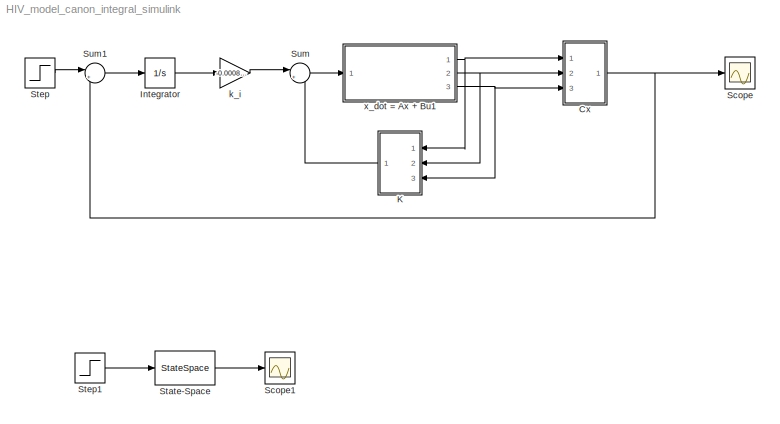
MODEL HIV_model_canon_integral_simulink
KIND model
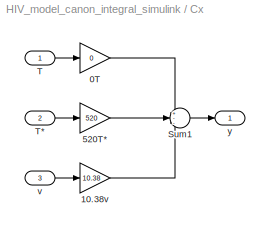
BLOCK [SubSystem] Cx
  FunctionWithSeparateData = off
  MaskHideContents = off
  MinAlgLoopOccurrences = off
  Opaque = off
  Ports = [3, 1]
  PropExecContextOutsideSubsystem = off
  RTWSystemCode = Auto
  RequestExecContextInheritance = off
  SID = 22
BLOCK [Gain] Cx/0T
  Gain = 0
  OutDataTypeMode = Inherit via internal rule
  OutDataTypeStr = Inherit: Inherit via internal rule
  ParamDataTypeStr = Inherit: Inherit via internal rule
  ParameterDataTypeMode = Inherit via internal rule
  SID = 18
  SaturateOnIntegerOverflow = off
BLOCK [Gain] Cx/10.38v
  Gain = 10.38
  OutDataTypeMode = Inherit via internal rule
  OutDataTypeStr = Inherit: Inherit via internal rule
  ParamDataTypeStr = Inherit: Inherit via internal rule
  ParameterDataTypeMode = Inherit via internal rule
  SID = 20
  SaturateOnIntegerOverflow = off
BLOCK [Gain] Cx/520T*
  Gain = 520
  OutDataTypeMode = Inherit via internal rule
  OutDataTypeStr = Inherit: Inherit via internal rule
  ParamDataTypeStr = Inherit: Inherit via internal rule
  ParameterDataTypeMode = Inherit via internal rule
  SID = 19
  SaturateOnIntegerOverflow = off
BLOCK [Sum] Cx/Sum1
  IconShape = round
  InputSameDT = off
  Inputs = +--
  OutDataTypeMode = Inherit via internal rule
  OutDataTypeStr = Inherit: Inherit via internal rule
  Ports = [3, 1]
  SID = 21
  SaturateOnIntegerOverflow = off
BLOCK [Inport] Cx/T
  IconDisplay = Port number
  SID = 23
BLOCK [Inport] Cx/T*
  IconDisplay = Port number
  Port = 2
  SID = 24
BLOCK [Inport] Cx/v
  IconDisplay = Port number
  Port = 3
  SID = 26
BLOCK [Outport] Cx/y
  IconDisplay = Port number
  SID = 25
BLOCK [Integrator] Integrator
  Ports = [1, 1]
  SID = 44
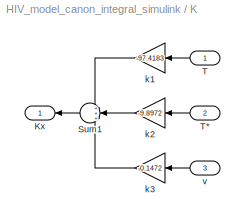
BLOCK [SubSystem] K
  FunctionWithSeparateData = off
  MaskHideContents = off
  MinAlgLoopOccurrences = off
  Opaque = off
  Ports = [3, 1]
  PropExecContextOutsideSubsystem = off
  RTWSystemCode = Auto
  RequestExecContextInheritance = off
  SID = 32
BLOCK [Outport] K/Kx
  IconDisplay = Port number
  SID = 34
BLOCK [Sum] K/Sum1
  IconShape = round
  InputSameDT = off
  Inputs = +++
  OutDataTypeMode = Inherit via internal rule
  OutDataTypeStr = Inherit: Inherit via internal rule
  Ports = [3, 1]
  SID = 30
  SaturateOnIntegerOverflow = off
BLOCK [Inport] K/T
  IconDisplay = Port number
  SID = 33
BLOCK [Inport] K/T*
  IconDisplay = Port number
  Port = 2
  SID = 35
BLOCK [Gain] K/k1
  Gain = -97.4183
  OutDataTypeMode = Inherit via internal rule
  OutDataTypeStr = Inherit: Inherit via internal rule
  ParamDataTypeStr = Inherit: Inherit via internal rule
  ParameterDataTypeMode = Inherit via internal rule
  SID = 27
  SaturateOnIntegerOverflow = off
BLOCK [Gain] K/k2
  Gain = -9.8972
  OutDataTypeMode = Inherit via internal rule
  OutDataTypeStr = Inherit: Inherit via internal rule
  ParamDataTypeStr = Inherit: Inherit via internal rule
  ParameterDataTypeMode = Inherit via internal rule
  SID = 28
  SaturateOnIntegerOverflow = off
BLOCK [Gain] K/k3
  Gain = -0.1472
  OutDataTypeMode = Inherit via internal rule
  OutDataTypeStr = Inherit: Inherit via internal rule
  ParamDataTypeStr = Inherit: Inherit via internal rule
  ParameterDataTypeMode = Inherit via internal rule
  SID = 29
  SaturateOnIntegerOverflow = off
BLOCK [Inport] K/v
  IconDisplay = Port number
  Port = 3
  SID = 36
BLOCK [Scope] Scope
  DataFormat = Array
  Floating = off
  LimitDataPoints = off
  NumInputPorts = 1
  Ports = [1]
  SID = 37
  SampleTime = 0
  SaveName = ScopeData_Integral
  SaveToWorkspace = on
  TimeRange = 160
  YMax = 1.4
  YMin = 0
  ZoomMode = xonly
BLOCK [Scope] Scope1
  DataFormat = Array
  Floating = off
  LimitDataPoints = off
  NumInputPorts = 1
  Ports = [1]
  SID = 52
  SampleTime = 0
  SaveName = ScopeData_Integral1
  SaveToWorkspace = on
  TimeRange = 160
  YMax = 1.4
  YMin = 0
  ZoomMode = xonly
BLOCK [StateSpace] State-Space
  A = sys_big.a
  B = sys_big.b
  C = sys_big.c
  D = sys_big.d
  SID = 51
BLOCK [Step] Step
  SID = 8
  SampleTime = 0
  Time = 0
BLOCK [Step] Step1
  SID = 50
  SampleTime = 0
  Time = 0
BLOCK [Sum] Sum
  IconShape = round
  InputSameDT = off
  Inputs = |++
  OutDataTypeMode = Inherit via internal rule
  OutDataTypeStr = Inherit: Inherit via internal rule
  Ports = [2, 1]
  SID = 17
  SaturateOnIntegerOverflow = off
BLOCK [Sum] Sum1
  IconShape = round
  InputSameDT = off
  Inputs = |+-
  OutDataTypeMode = Inherit via internal rule
  OutDataTypeStr = Inherit: Inherit via internal rule
  Ports = [2, 1]
  SID = 42
  SaturateOnIntegerOverflow = off
BLOCK [Gain] k_i
  Gain = -0.00088499
  OutDataTypeMode = Inherit via internal rule
  OutDataTypeStr = Inherit: Inherit via internal rule
  ParamDataTypeStr = Inherit: Inherit via internal rule
  ParameterDataTypeMode = Inherit via internal rule
  SID = 41
  SaturateOnIntegerOverflow = off
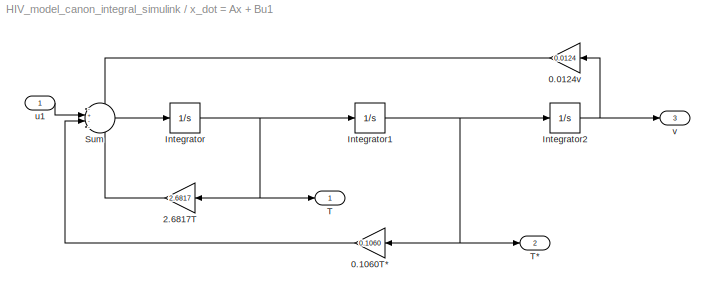
BLOCK [SubSystem] x_dot = Ax + Bu1
  FunctionWithSeparateData = off
  MaskHideContents = off
  MinAlgLoopOccurrences = off
  Opaque = off
  Ports = [1, 3]
  PropExecContextOutsideSubsystem = off
  RTWSystemCode = Auto
  RequestExecContextInheritance = off
  SID = 12
BLOCK [Gain] x_dot = Ax + Bu1/0.0124v
  Gain = 0.0124
  OutDataTypeMode = Inherit via internal rule
  OutDataTypeStr = Inherit: Inherit via internal rule
  ParamDataTypeStr = Inherit: Inherit via internal rule
  ParameterDataTypeMode = Inherit via internal rule
  SID = 7
  SaturateOnIntegerOverflow = off
BLOCK [Gain] x_dot = Ax + Bu1/0.1060T*
  Gain = 0.1060
  OutDataTypeMode = Inherit via internal rule
  OutDataTypeStr = Inherit: Inherit via internal rule
  ParamDataTypeStr = Inherit: Inherit via internal rule
  ParameterDataTypeMode = Inherit via internal rule
  SID = 6
  SaturateOnIntegerOverflow = off
BLOCK [Gain] x_dot = Ax + Bu1/2.6817T
  Gain = 2.6817
  OutDataTypeMode = Inherit via internal rule
  OutDataTypeStr = Inherit: Inherit via internal rule
  ParamDataTypeStr = Inherit: Inherit via internal rule
  ParameterDataTypeMode = Inherit via internal rule
  SID = 4
  SaturateOnIntegerOverflow = off
BLOCK [Integrator] x_dot = Ax + Bu1/Integrator
  Ports = [1, 1]
  SID = 1
BLOCK [Integrator] x_dot = Ax + Bu1/Integrator1
  Ports = [1, 1]
  SID = 2
BLOCK [Integrator] x_dot = Ax + Bu1/Integrator2
  Ports = [1, 1]
  SID = 3
BLOCK [Sum] x_dot = Ax + Bu1/Sum
  IconShape = round
  InputSameDT = off
  Inputs = -+--
  OutDataTypeMode = Inherit via internal rule
  OutDataTypeStr = Inherit: Inherit via internal rule
  Ports = [4, 1]
  SID = 5
  SaturateOnIntegerOverflow = off
BLOCK [Outport] x_dot = Ax + Bu1/T
  IconDisplay = Port number
  SID = 14
BLOCK [Outport] x_dot = Ax + Bu1/T*
  IconDisplay = Port number
  Port = 2
  SID = 15
BLOCK [Inport] x_dot = Ax + Bu1/u1
  IconDisplay = Port number
  SID = 13
BLOCK [Outport] x_dot = Ax + Bu1/v
  IconDisplay = Port number
  Port = 3
  SID = 16
LINE Cx/0T:1 -> Cx/Sum1:1
LINE Cx/10.38v:1 -> Cx/Sum1:3
LINE Cx/520T*:1 -> Cx/Sum1:2
LINE Cx/Sum1:1 -> Cx/y:1
LINE Cx/T*:1 -> Cx/520T*:1
LINE Cx/T:1 -> Cx/0T:1
LINE Cx/v:1 -> Cx/10.38v:1
NET Cx:1 -> Scope:1, Sum1:2
LINE Integrator:1 -> k_i:1
LINE K/Sum1:1 -> K/Kx:1
LINE K/T*:1 -> K/k2:1
LINE K/T:1 -> K/k1:1
LINE K/k1:1 -> K/Sum1:1
LINE K/k2:1 -> K/Sum1:2
LINE K/k3:1 -> K/Sum1:3
LINE K/v:1 -> K/k3:1
LINE K:1 -> Sum:2
LINE State-Space:1 -> Scope1:1
LINE Step1:1 -> State-Space:1
LINE Step:1 -> Sum1:1
LINE Sum1:1 -> Integrator:1
LINE Sum:1 -> x_dot = Ax + Bu1:1
LINE k_i:1 -> Sum:1
LINE x_dot = Ax + Bu1/0.0124v:1 -> x_dot = Ax + Bu1/Sum:1
LINE x_dot = Ax + Bu1/0.1060T*:1 -> x_dot = Ax + Bu1/Sum:3
LINE x_dot = Ax + Bu1/2.6817T:1 -> x_dot = Ax + Bu1/Sum:4
NET x_dot = Ax + Bu1/Integrator1:1 -> x_dot = Ax + Bu1/0.1060T*:1, x_dot = Ax + Bu1/Integrator2:1, x_dot = Ax + Bu1/T*:1
NET x_dot = Ax + Bu1/Integrator2:1 -> x_dot = Ax + Bu1/0.0124v:1, x_dot = Ax + Bu1/v:1
NET x_dot = Ax + Bu1/Integrator:1 -> x_dot = Ax + Bu1/2.6817T:1, x_dot = Ax + Bu1/Integrator1:1, x_dot = Ax + Bu1/T:1
LINE x_dot = Ax + Bu1/Sum:1 -> x_dot = Ax + Bu1/Integrator:1
LINE x_dot = Ax + Bu1/u1:1 -> x_dot = Ax + Bu1/Sum:2
NET x_dot = Ax + Bu1:1 -> Cx:1, K:1
NET x_dot = Ax + Bu1:2 -> Cx:2, K:2
NET x_dot = Ax + Bu1:3 -> Cx:3, K:3
note: NET lines group one-source signal fan-out (src -> all destinations, sorted); 1:1 wires keep LINE
